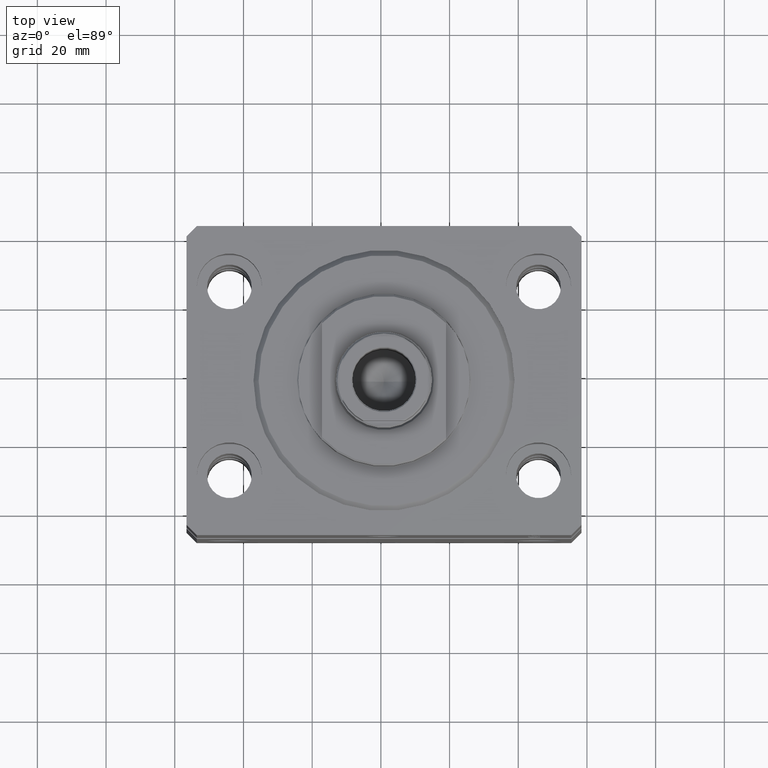
[diagram: clean part render]
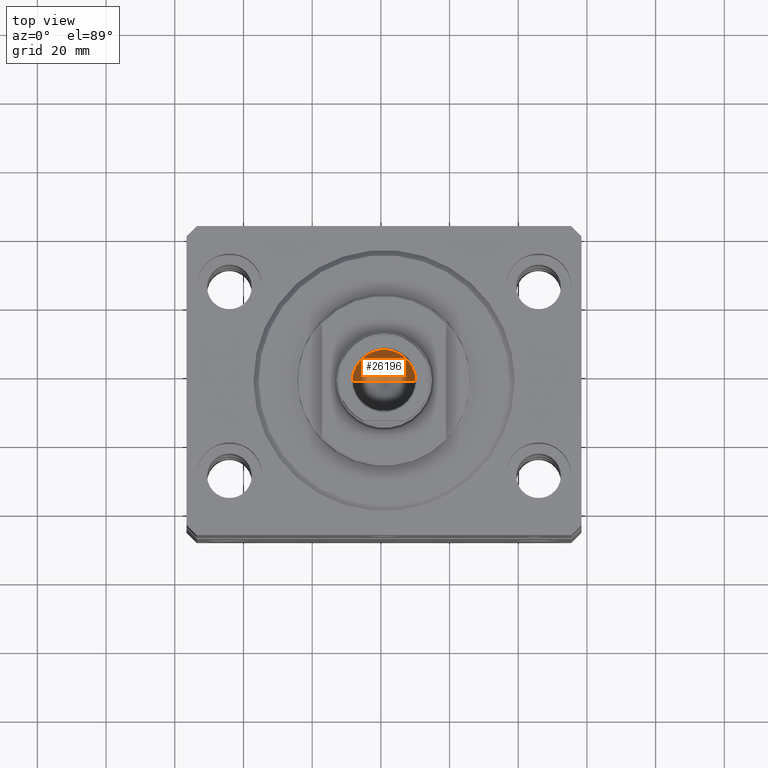
[diagram: same view with one face highlighted and labeled with its STEP entity id]
A machine part, top view. The second image highlights one B-rep face of the part: STEP entity #26196.
In plain terms, the highlighted conical surface has half-angle 59 deg.
Its self-contained STEP definition (entity closure, byte-faithful):
#473 = CONICAL_SURFACE ( 'NONE', #38717, 9.249999999999994671, 1.029744258676653423 ) ;
#2082 = DIRECTION ( 'NONE',  ( -0.000000000000000000, -0.000000000000000000, 1.000000000000000000 ) ) ;
#5814 = DIRECTION ( 'NONE',  ( 0.8571673007021117785, 0.000000000000000000, 0.5150380749100550437 ) ) ;
#6277 = CARTESIAN_POINT ( 'NONE',  ( 9.249999999999994671, 0.000000000000000000, 102.0999999999999943 ) ) ;
#7528 = ORIENTED_EDGE ( 'NONE', *, *, #24430, .T. ) ;
#9010 = CARTESIAN_POINT ( 'NONE',  ( 9.249999999999994671, 0.000000000000000000, 102.0999999999999943 ) ) ;
#11739 = CIRCLE ( 'NONE', #42512, 9.249999999999994671 ) ;
#13269 = ORIENTED_EDGE ( 'NONE', *, *, #27490, .T. ) ;
#14332 = DIRECTION ( 'NONE',  ( 1.000000000000000000, 0.000000000000000000, 0.000000000000000000 ) ) ;
#23211 = DIRECTION ( 'NONE',  ( 1.000000000000000000, 0.000000000000000000, 0.000000000000000000 ) ) ;
#24430 = EDGE_CURVE ( 'NONE', #31369, #46071, #34678, .T. ) ;
#26196 = ADVANCED_FACE ( 'NONE', ( #28644 ), #473, .F. ) ;
#27490 = EDGE_CURVE ( 'NONE', #46071, #31574, #11739, .T. ) ;
#28180 = DIRECTION ( 'NONE',  ( -0.000000000000000000, -0.000000000000000000, 1.000000000000000000 ) ) ;
#28468 = CARTESIAN_POINT ( 'NONE',  ( -9.249999999999994671, 1.132798289211300909E-15, 102.0999999999999943 ) ) ;
#28644 = FACE_OUTER_BOUND ( 'NONE', #39009, .T. ) ;
#29879 = CARTESIAN_POINT ( 'NONE',  ( -9.249999999999994671, 1.132798289211300909E-15, 102.0999999999999943 ) ) ;
#29988 = CARTESIAN_POINT ( 'NONE',  ( -1.046994375366439223E-14, 0.000000000000000000, 96.54203927399505858 ) ) ;
#31369 = VERTEX_POINT ( 'NONE', #29988 ) ;
#31574 = VERTEX_POINT ( 'NONE', #29879 ) ;
#31880 = VECTOR ( 'NONE', #5814, 1000.000000000000000 ) ;
#34678 = LINE ( 'NONE', #6277, #31880 ) ;
#34808 = LINE ( 'NONE', #28468, #38410 ) ;
#38410 = VECTOR ( 'NONE', #42332, 1000.000000000000000 ) ;
#38717 = AXIS2_PLACEMENT_3D ( 'NONE', #39227, #28180, #14332 ) ;
#39009 = EDGE_LOOP ( 'NONE', ( #43769, #7528, #13269 ) ) ;
#39227 = CARTESIAN_POINT ( 'NONE',  ( 0.000000000000000000, 0.000000000000000000, 102.0999999999999943 ) ) ;
#42332 = DIRECTION ( 'NONE',  ( -0.8571673007021117785, 1.049727191138617956E-16, 0.5150380749100550437 ) ) ;
#42512 = AXIS2_PLACEMENT_3D ( 'NONE', #45521, #2082, #23211 ) ;
#43769 = ORIENTED_EDGE ( 'NONE', *, *, #46114, .F. ) ;
#45521 = CARTESIAN_POINT ( 'NONE',  ( 0.000000000000000000, 0.000000000000000000, 102.0999999999999943 ) ) ;
#46071 = VERTEX_POINT ( 'NONE', #9010 ) ;
#46114 = EDGE_CURVE ( 'NONE', #31369, #31574, #34808, .T. ) ;